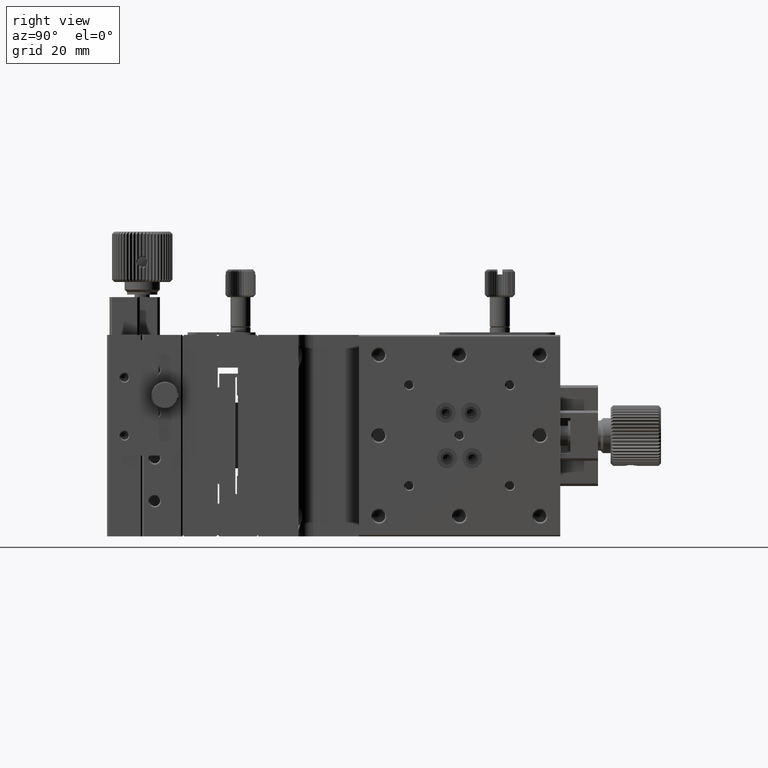
[diagram: clean part render]
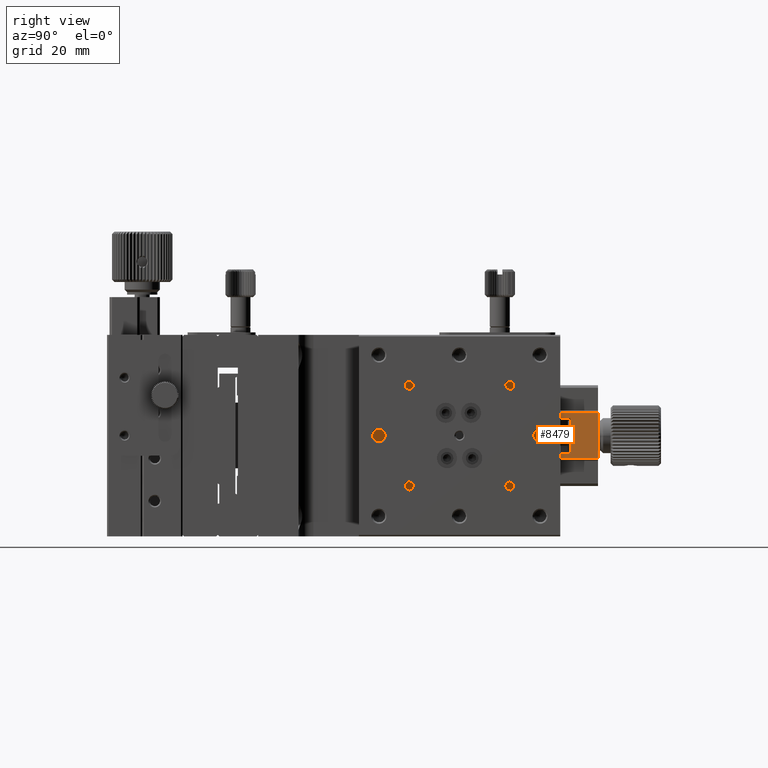
[diagram: same view with one face highlighted and labeled with its STEP entity id]
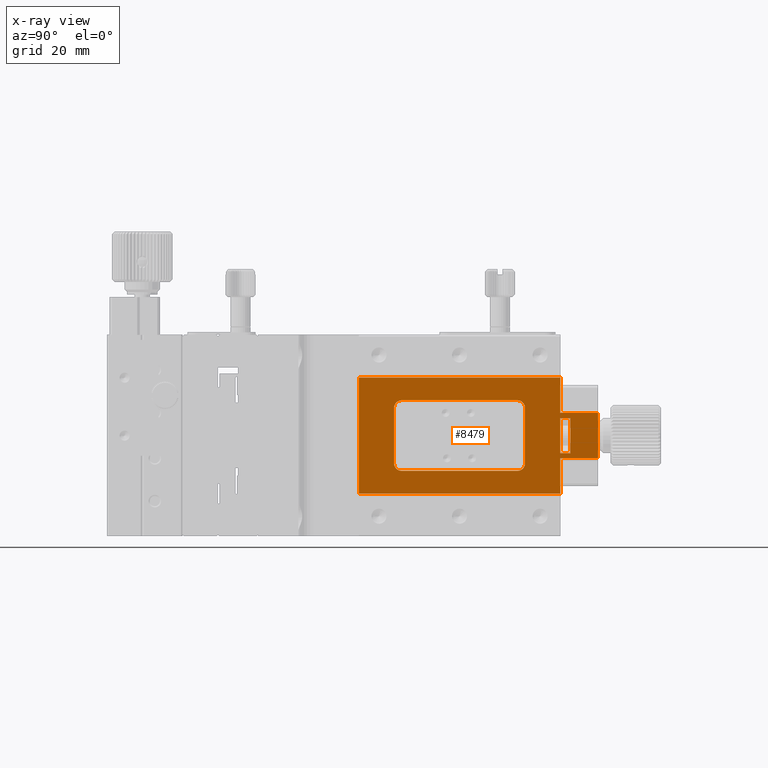
[diagram: x-ray of the same camera — body ghosted, the highlighted face saturated]
A machine part, right view. The second image highlights one B-rep face of the part: STEP entity #8479.
The next image is the same camera in x-ray: the body ghosted, the highlighted face saturated — about 0% of this face is hidden behind the body in this view.
In plain terms, the highlighted planar face has unit normal (-1, -0, 0).
Its self-contained STEP definition (entity closure, byte-faithful):
#140 = VERTEX_POINT ( 'NONE', #32407 ) ;
#252 = DIRECTION ( 'NONE',  ( -1.000000000000000000, -0.000000000000000000, 0.000000000000000000 ) ) ;
#908 = VECTOR ( 'NONE', #7383, 1000.000000000000000 ) ;
#1055 = CARTESIAN_POINT ( 'NONE',  ( 26.50000000000000355, 53.00000000000000000, -14.49999999999999467 ) ) ;
#1122 = EDGE_CURVE ( 'NONE', #59930, #12664, #8374, .T. ) ;
#1264 = CARTESIAN_POINT ( 'NONE',  ( 26.50000000000000355, 28.49999999999999645, -25.50000000000000000 ) ) ;
#1333 = CARTESIAN_POINT ( 'NONE',  ( 26.50000000000000000, 60.00000000000000000, -24.50000000000000000 ) ) ;
#1674 = VECTOR ( 'NONE', #2442, 1000.000000000000000 ) ;
#1753 = EDGE_CURVE ( 'NONE', #53752, #140, #38157, .T. ) ;
#1927 = DIRECTION ( 'NONE',  ( 0.000000000000000000, -1.000000000000000000, 0.000000000000000000 ) ) ;
#1938 = VECTOR ( 'NONE', #24940, 1000.000000000000000 ) ;
#2442 = DIRECTION ( 'NONE',  ( 0.000000000000000000, -1.000000000000000000, 0.000000000000000000 ) ) ;
#2744 = CARTESIAN_POINT ( 'NONE',  ( 26.50000000000000355, 19.99999999999999645, -15.49999999999999467 ) ) ;
#2763 = CARTESIAN_POINT ( 'NONE',  ( 26.50000000000000355, 28.49999999999999645, -12.99999999999999645 ) ) ;
#4257 = ORIENTED_EDGE ( 'NONE', *, *, #5546, .F. ) ;
#4839 = DIRECTION ( 'NONE',  ( -0.000000000000000000, 1.000000000000000000, -0.000000000000000000 ) ) ;
#5328 = ORIENTED_EDGE ( 'NONE', *, *, #53444, .F. ) ;
#5527 = DIRECTION ( 'NONE',  ( 1.000000000000000000, 0.000000000000000000, 0.000000000000000000 ) ) ;
#5546 = EDGE_CURVE ( 'NONE', #29995, #14764, #6405, .T. ) ;
#5755 = VECTOR ( 'NONE', #1927, 1000.000000000000000 ) ;
#6212 = VERTEX_POINT ( 'NONE', #25055 ) ;
#6405 = LINE ( 'NONE', #34366, #20983 ) ;
#6442 = ORIENTED_EDGE ( 'NONE', *, *, #18278, .F. ) ;
#6609 = EDGE_CURVE ( 'NONE', #23135, #43930, #7017, .T. ) ;
#6904 = CIRCLE ( 'NONE', #12737, 1.499999999999999556 ) ;
#6907 = CARTESIAN_POINT ( 'NONE',  ( 26.50000000000000355, 60.00000000000000000, 4.898587196589409870E-15 ) ) ;
#6930 = EDGE_CURVE ( 'NONE', #18303, #56985, #32234, .T. ) ;
#7017 = LINE ( 'NONE', #25567, #24995 ) ;
#7191 = ORIENTED_EDGE ( 'NONE', *, *, #12060, .F. ) ;
#7383 = DIRECTION ( 'NONE',  ( -0.000000000000000000, 1.000000000000000000, -0.000000000000000000 ) ) ;
#7824 = DIRECTION ( 'NONE',  ( 0.000000000000000000, 0.000000000000000000, 1.000000000000000000 ) ) ;
#8113 = VECTOR ( 'NONE', #4839, 1000.000000000000000 ) ;
#8354 = VERTEX_POINT ( 'NONE', #45579 ) ;
#8374 = LINE ( 'NONE', #49696, #22541 ) ;
#8479 = ADVANCED_FACE ( 'NONE', ( #13007, #50992, #9367 ), #22442, .F. ) ;
#8990 = CARTESIAN_POINT ( 'NONE',  ( 26.50000000000000355, 19.99999999999999645, -31.51999999999998536 ) ) ;
#9021 = ORIENTED_EDGE ( 'NONE', *, *, #29869, .F. ) ;
#9367 = FACE_OUTER_BOUND ( 'NONE', #54010, .T. ) ;
#9716 = CARTESIAN_POINT ( 'NONE',  ( 26.50000000000000355, 60.00000000000000000, -15.49999999999999467 ) ) ;
#9748 = DIRECTION ( 'NONE',  ( 0.000000000000000000, -0.000000000000000000, -1.000000000000000000 ) ) ;
#10766 = LINE ( 'NONE', #25051, #5755 ) ;
#10802 = CARTESIAN_POINT ( 'NONE',  ( 26.50000000000000355, 60.00000000000000000, -16.49999999999999645 ) ) ;
#11281 = DIRECTION ( 'NONE',  ( 0.000000000000000000, 0.000000000000000000, 1.000000000000000000 ) ) ;
#11346 = CARTESIAN_POINT ( 'NONE',  ( 26.50000000000000355, 60.00000000000000000, -23.49999999999999645 ) ) ;
#11891 = DIRECTION ( 'NONE',  ( -0.000000000000000000, -0.000000000000000000, 1.000000000000000000 ) ) ;
#12004 = CARTESIAN_POINT ( 'NONE',  ( 26.50000000000000355, 19.99999999999999645, -31.51999999999999247 ) ) ;
#12060 = EDGE_CURVE ( 'NONE', #14400, #29995, #10766, .T. ) ;
#12192 = EDGE_CURVE ( 'NONE', #140, #51594, #20774, .T. ) ;
#12375 = ORIENTED_EDGE ( 'NONE', *, *, #18402, .F. ) ;
#12598 = LINE ( 'NONE', #44545, #34938 ) ;
#12664 = VERTEX_POINT ( 'NONE', #2763 ) ;
#12737 = AXIS2_PLACEMENT_3D ( 'NONE', #51876, #23045, #13619 ) ;
#13007 = FACE_BOUND ( 'NONE', #53232, .T. ) ;
#13580 = DIRECTION ( 'NONE',  ( -0.000000000000000000, 0.000000000000000000, 1.000000000000000000 ) ) ;
#13619 = DIRECTION ( 'NONE',  ( 0.000000000000000000, 0.000000000000000000, 1.000000000000000000 ) ) ;
#14294 = CARTESIAN_POINT ( 'NONE',  ( 26.50000000000000355, 67.50000000000000000, -31.51999999999999247 ) ) ;
#14400 = VERTEX_POINT ( 'NONE', #26300 ) ;
#14764 = VERTEX_POINT ( 'NONE', #11346 ) ;
#14903 = VERTEX_POINT ( 'NONE', #28329 ) ;
#15351 = DIRECTION ( 'NONE',  ( 0.000000000000000000, 0.000000000000000000, 1.000000000000000000 ) ) ;
#16438 = LINE ( 'NONE', #2744, #8113 ) ;
#16817 = CARTESIAN_POINT ( 'NONE',  ( 26.50000000000000355, 19.99999999999999645, -26.99999999999999645 ) ) ;
#17158 = CARTESIAN_POINT ( 'NONE',  ( 26.50000000000000355, 67.50000000000000000, -15.49999999999999467 ) ) ;
#17871 = CARTESIAN_POINT ( 'NONE',  ( 26.50000000000000355, 19.99999999999999645, -31.51999999999999247 ) ) ;
#18278 = EDGE_CURVE ( 'NONE', #6212, #43930, #12598, .T. ) ;
#18303 = VERTEX_POINT ( 'NONE', #17158 ) ;
#18402 = EDGE_CURVE ( 'NONE', #41535, #45290, #37528, .T. ) ;
#19920 = CARTESIAN_POINT ( 'NONE',  ( 26.50000000000000355, 51.50000000000000000, -14.49999999999999467 ) ) ;
#20424 = ORIENTED_EDGE ( 'NONE', *, *, #20818, .F. ) ;
#20718 = CARTESIAN_POINT ( 'NONE',  ( 26.50000000000000000, 67.50000000000000000, -24.49999999999999645 ) ) ;
#20774 = LINE ( 'NONE', #16817, #908 ) ;
#20818 = EDGE_CURVE ( 'NONE', #45290, #59930, #34617, .T. ) ;
#20983 = VECTOR ( 'NONE', #57177, 1000.000000000000000 ) ;
#21793 = CARTESIAN_POINT ( 'NONE',  ( 26.50000000000000355, 51.50000000000000000, -25.50000000000000000 ) ) ;
#22442 = PLANE ( 'NONE',  #25373 ) ;
#22541 = VECTOR ( 'NONE', #45467, 1000.000000000000000 ) ;
#22715 = VECTOR ( 'NONE', #48860, 1000.000000000000000 ) ;
#22720 = EDGE_CURVE ( 'NONE', #40055, #6212, #29491, .T. ) ;
#22938 = CARTESIAN_POINT ( 'NONE',  ( 26.50000000000000355, 53.00000000000000000, -31.51999999999999247 ) ) ;
#23045 = DIRECTION ( 'NONE',  ( 1.000000000000000000, 0.000000000000000000, 0.000000000000000000 ) ) ;
#23135 = VERTEX_POINT ( 'NONE', #9716 ) ;
#23625 = CARTESIAN_POINT ( 'NONE',  ( 26.50000000000000355, 62.00000000000000000, -23.49999999999999645 ) ) ;
#23778 = VECTOR ( 'NONE', #52610, 1000.000000000000000 ) ;
#23803 = CARTESIAN_POINT ( 'NONE',  ( 26.50000000000000355, 60.00000000000000000, -8.478999999999974335 ) ) ;
#24780 = ORIENTED_EDGE ( 'NONE', *, *, #28051, .T. ) ;
#24920 = AXIS2_PLACEMENT_3D ( 'NONE', #19920, #53017, #15351 ) ;
#24940 = DIRECTION ( 'NONE',  ( -0.000000000000000000, -0.000000000000000000, 1.000000000000000000 ) ) ;
#24995 = VECTOR ( 'NONE', #11891, 1000.000000000000000 ) ;
#25051 = CARTESIAN_POINT ( 'NONE',  ( 26.50000000000000355, 19.99999999999999645, -16.49999999999999645 ) ) ;
#25055 = CARTESIAN_POINT ( 'NONE',  ( 26.50000000000000355, 19.99999999999999645, -8.478999999999974335 ) ) ;
#25373 = AXIS2_PLACEMENT_3D ( 'NONE', #17871, #252, #27900 ) ;
#25553 = CARTESIAN_POINT ( 'NONE',  ( 26.50000000000000355, 19.99999999999999645, -24.49999999999999645 ) ) ;
#25567 = CARTESIAN_POINT ( 'NONE',  ( 26.50000000000000355, 60.00000000000000000, 4.898587196589409870E-15 ) ) ;
#26300 = CARTESIAN_POINT ( 'NONE',  ( 26.50000000000000355, 62.00000000000000000, -16.49999999999999645 ) ) ;
#26566 = AXIS2_PLACEMENT_3D ( 'NONE', #21793, #58272, #7824 ) ;
#26629 = ORIENTED_EDGE ( 'NONE', *, *, #22720, .F. ) ;
#27474 = AXIS2_PLACEMENT_3D ( 'NONE', #1264, #5527, #11281 ) ;
#27900 = DIRECTION ( 'NONE',  ( 0.000000000000000000, -0.000000000000000000, -1.000000000000000000 ) ) ;
#28051 = EDGE_CURVE ( 'NONE', #8354, #34863, #49155, .T. ) ;
#28094 = EDGE_CURVE ( 'NONE', #51594, #41535, #43116, .T. ) ;
#28329 = CARTESIAN_POINT ( 'NONE',  ( 26.50000000000000355, 26.99999999999999645, -14.49999999999999467 ) ) ;
#28773 = CARTESIAN_POINT ( 'NONE',  ( 26.50000000000000355, 51.50000000000000000, -12.99999999999999645 ) ) ;
#28900 = ORIENTED_EDGE ( 'NONE', *, *, #6609, .T. ) ;
#28935 = CARTESIAN_POINT ( 'NONE',  ( 26.50000000000000355, 51.50000000000000000, -27.00000000000000000 ) ) ;
#29491 = LINE ( 'NONE', #34638, #1938 ) ;
#29514 = CARTESIAN_POINT ( 'NONE',  ( 26.50000000000000355, 19.99999999999999645, -23.49999999999999645 ) ) ;
#29810 = LINE ( 'NONE', #29514, #23778 ) ;
#29869 = EDGE_CURVE ( 'NONE', #54000, #14400, #50344, .T. ) ;
#29995 = VERTEX_POINT ( 'NONE', #10802 ) ;
#30532 = DIRECTION ( 'NONE',  ( 0.000000000000000000, -1.000000000000000000, 0.000000000000000000 ) ) ;
#31275 = EDGE_CURVE ( 'NONE', #8354, #40055, #58793, .T. ) ;
#31509 = ORIENTED_EDGE ( 'NONE', *, *, #1122, .F. ) ;
#32168 = ORIENTED_EDGE ( 'NONE', *, *, #44487, .F. ) ;
#32185 = ORIENTED_EDGE ( 'NONE', *, *, #31275, .F. ) ;
#32234 = LINE ( 'NONE', #14294, #46442 ) ;
#32407 = CARTESIAN_POINT ( 'NONE',  ( 26.50000000000000355, 28.49999999999999645, -26.99999999999999645 ) ) ;
#34098 = ORIENTED_EDGE ( 'NONE', *, *, #1753, .F. ) ;
#34211 = EDGE_CURVE ( 'NONE', #56985, #34863, #34970, .T. ) ;
#34366 = CARTESIAN_POINT ( 'NONE',  ( 26.50000000000000355, 60.00000000000000000, -31.51999999999999247 ) ) ;
#34617 = CIRCLE ( 'NONE', #24920, 1.499999999999999556 ) ;
#34638 = CARTESIAN_POINT ( 'NONE',  ( 26.50000000000000355, 19.99999999999999645, 4.898587196589409870E-15 ) ) ;
#34863 = VERTEX_POINT ( 'NONE', #1333 ) ;
#34938 = VECTOR ( 'NONE', #45446, 1000.000000000000000 ) ;
#34970 = LINE ( 'NONE', #25553, #1674 ) ;
#35793 = VECTOR ( 'NONE', #13580, 1000.000000000000000 ) ;
#37528 = LINE ( 'NONE', #22938, #40515 ) ;
#38070 = CARTESIAN_POINT ( 'NONE',  ( 26.50000000000000355, 53.00000000000000000, -25.50000000000000000 ) ) ;
#38157 = CIRCLE ( 'NONE', #27474, 1.499999999999990896 ) ;
#40055 = VERTEX_POINT ( 'NONE', #8990 ) ;
#40515 = VECTOR ( 'NONE', #50280, 1000.000000000000000 ) ;
#41535 = VERTEX_POINT ( 'NONE', #38070 ) ;
#41743 = ORIENTED_EDGE ( 'NONE', *, *, #34211, .F. ) ;
#43116 = CIRCLE ( 'NONE', #26566, 1.500000000000001332 ) ;
#43930 = VERTEX_POINT ( 'NONE', #23803 ) ;
#44130 = EDGE_LOOP ( 'NONE', ( #12375, #58171, #52132, #34098, #32168, #54375, #31509, #20424 ) ) ;
#44365 = DIRECTION ( 'NONE',  ( 0.000000000000000000, -0.000000000000000000, -1.000000000000000000 ) ) ;
#44487 = EDGE_CURVE ( 'NONE', #14903, #53752, #48311, .T. ) ;
#44545 = CARTESIAN_POINT ( 'NONE',  ( 26.50000000000000355, 19.99999999999999645, -8.478999999999974335 ) ) ;
#44662 = CARTESIAN_POINT ( 'NONE',  ( 26.50000000000000355, 26.99999999999999645, -31.51999999999999247 ) ) ;
#45290 = VERTEX_POINT ( 'NONE', #1055 ) ;
#45446 = DIRECTION ( 'NONE',  ( -0.000000000000000000, 1.000000000000000000, -0.000000000000000000 ) ) ;
#45467 = DIRECTION ( 'NONE',  ( 0.000000000000000000, -1.000000000000000000, 0.000000000000000000 ) ) ;
#45579 = CARTESIAN_POINT ( 'NONE',  ( 26.50000000000000355, 60.00000000000000000, -31.51999999999998536 ) ) ;
#46316 = ORIENTED_EDGE ( 'NONE', *, *, #54511, .F. ) ;
#46334 = ORIENTED_EDGE ( 'NONE', *, *, #6930, .F. ) ;
#46442 = VECTOR ( 'NONE', #9748, 1000.000000000000000 ) ;
#48311 = LINE ( 'NONE', #44662, #50311 ) ;
#48563 = EDGE_CURVE ( 'NONE', #12664, #14903, #6904, .T. ) ;
#48860 = DIRECTION ( 'NONE',  ( -0.000000000000000000, -0.000000000000000000, 1.000000000000000000 ) ) ;
#49155 = LINE ( 'NONE', #6907, #22715 ) ;
#49696 = CARTESIAN_POINT ( 'NONE',  ( 26.50000000000000355, 19.99999999999999645, -12.99999999999999645 ) ) ;
#49761 = CARTESIAN_POINT ( 'NONE',  ( 26.50000000000000355, 27.00000000000000355, -25.50000000000000000 ) ) ;
#50280 = DIRECTION ( 'NONE',  ( -0.000000000000000000, 0.000000000000000000, 1.000000000000000000 ) ) ;
#50311 = VECTOR ( 'NONE', #44365, 1000.000000000000000 ) ;
#50344 = LINE ( 'NONE', #55216, #35793 ) ;
#50490 = VECTOR ( 'NONE', #30532, 1000.000000000000000 ) ;
#50992 = FACE_BOUND ( 'NONE', #44130, .T. ) ;
#51594 = VERTEX_POINT ( 'NONE', #28935 ) ;
#51876 = CARTESIAN_POINT ( 'NONE',  ( 26.50000000000000355, 28.49999999999999645, -14.49999999999999467 ) ) ;
#52132 = ORIENTED_EDGE ( 'NONE', *, *, #12192, .F. ) ;
#52610 = DIRECTION ( 'NONE',  ( -0.000000000000000000, 1.000000000000000000, -0.000000000000000000 ) ) ;
#53017 = DIRECTION ( 'NONE',  ( 1.000000000000000000, 0.000000000000000000, 0.000000000000000000 ) ) ;
#53232 = EDGE_LOOP ( 'NONE', ( #46316, #4257, #7191, #9021 ) ) ;
#53444 = EDGE_CURVE ( 'NONE', #23135, #18303, #16438, .T. ) ;
#53752 = VERTEX_POINT ( 'NONE', #49761 ) ;
#54000 = VERTEX_POINT ( 'NONE', #23625 ) ;
#54010 = EDGE_LOOP ( 'NONE', ( #41743, #46334, #5328, #28900, #6442, #26629, #32185, #24780 ) ) ;
#54375 = ORIENTED_EDGE ( 'NONE', *, *, #48563, .F. ) ;
#54511 = EDGE_CURVE ( 'NONE', #14764, #54000, #29810, .T. ) ;
#55216 = CARTESIAN_POINT ( 'NONE',  ( 26.50000000000000355, 62.00000000000000000, -31.51999999999999247 ) ) ;
#56985 = VERTEX_POINT ( 'NONE', #20718 ) ;
#57177 = DIRECTION ( 'NONE',  ( 0.000000000000000000, -0.000000000000000000, -1.000000000000000000 ) ) ;
#58171 = ORIENTED_EDGE ( 'NONE', *, *, #28094, .F. ) ;
#58272 = DIRECTION ( 'NONE',  ( 1.000000000000000000, 0.000000000000000000, 0.000000000000000000 ) ) ;
#58793 = LINE ( 'NONE', #12004, #50490 ) ;
#59930 = VERTEX_POINT ( 'NONE', #28773 ) ;